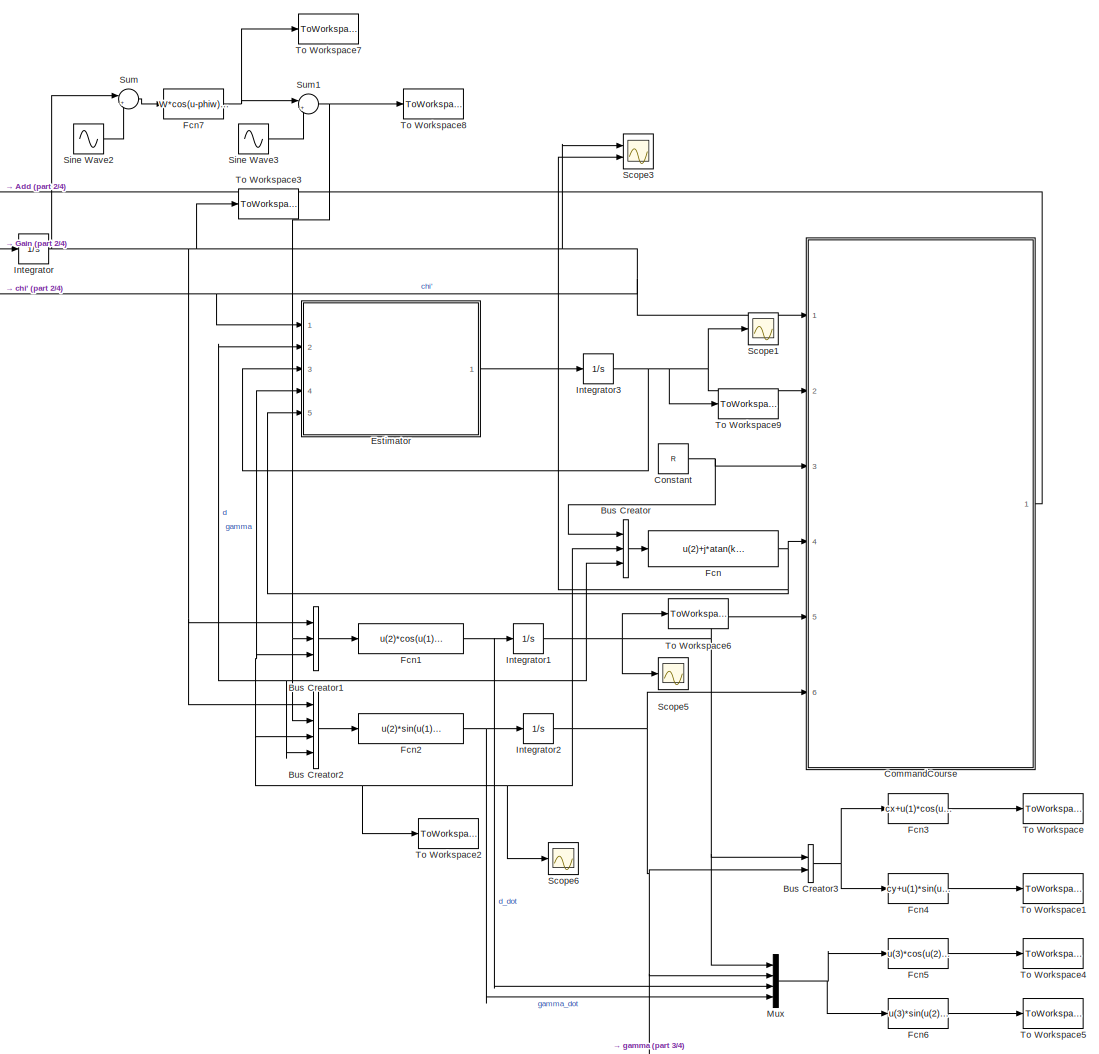
[diagram: root canvas - part 1/4, most of the canvas]
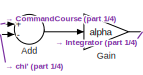
[diagram: root canvas - part 2/4, top left region]
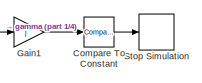
[diagram: root canvas - part 3/4, bottom right region]
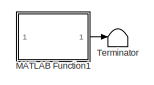
[diagram: root canvas - part 4/4, bottom left region]
MODEL slx_6d43719d4b91
KIND model
CONFIG AbsTol = auto
CONFIG FixedStep = 0.001
CONFIG MaxStep = auto
CONFIG MinStep = auto
CONFIG RelTol = 1e-4
CONFIG SampleTimeConstraint = Unconstrained
CONFIG Solver = FixedStepAuto
CONFIG SolverMode = Auto
CONFIG SolverName = FixedStepAuto
CONFIG StartTime = 0.0
CONFIG StopTime = 1000
BLOCK [Sum] Add
  InputSameDT = off
  Inputs = +-
  OutDataTypeStr = Inherit: Inherit via internal rule
  Ports = [2, 1]
  SaturateOnIntegerOverflow = off
BLOCK [BusCreator] Bus Creator
  DisplayOption = bar
  InheritFromInputs = on
  Inputs = 3
  Ports = [3, 1]
BLOCK [BusCreator] Bus Creator1
  DisplayOption = bar
  InheritFromInputs = on
  Inputs = 3
  Ports = [3, 1]
BLOCK [BusCreator] Bus Creator2
  DisplayOption = bar
  InheritFromInputs = on
  Inputs = 4
  Ports = [4, 1]
BLOCK [BusCreator] Bus Creator3
  DisplayOption = bar
  InheritFromInputs = on
  Inputs = 2
  Ports = [2, 1]
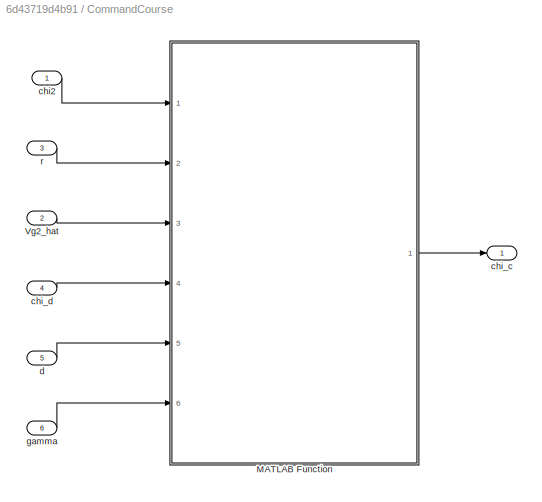
BLOCK [SubSystem] CommandCourse
  Ports = [6, 1]
  RequestExecContextInheritance = off
  Variant = off
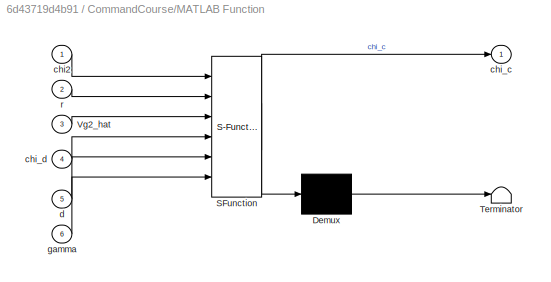
BLOCK [SubSystem] CommandCourse/MATLAB Function
  ErrorFcn = Stateflow.Translate.translate
  PermitHierarchicalResolution = ExplicitOnly
  Ports = [6, 1]
  RequestExecContextInheritance = off
  SFBlockType = MATLAB Function
  TreatAsAtomicUnit = on
  Variant = off
BLOCK [Demux] CommandCourse/MATLAB Function/ Demux 
  Outputs = 1
  Ports = [1, 1]
BLOCK [S-Function] CommandCourse/MATLAB Function/ SFunction 
  EnableBusSupport = on
  FunctionName = sf_sfun
  Parameters = alpha,epsi,k,kk
  PortCounts = [6 2]
  Ports = [6, 2]
  SFunctionDeploymentMode = off
  Tag = Stateflow S-Function RevisedOrbitFollowing2 2
BLOCK [Terminator] CommandCourse/MATLAB Function/ Terminator 
BLOCK [Inport] CommandCourse/MATLAB Function/Vg2_hat
  IconDisplay = Port number
  Port = 3
BLOCK [Inport] CommandCourse/MATLAB Function/chi2
  IconDisplay = Port number
BLOCK [Outport] CommandCourse/MATLAB Function/chi_c
  IconDisplay = Port number
BLOCK [Inport] CommandCourse/MATLAB Function/chi_d
  IconDisplay = Port number
  Port = 4
BLOCK [Inport] CommandCourse/MATLAB Function/d
  IconDisplay = Port number
  Port = 5
BLOCK [Inport] CommandCourse/MATLAB Function/gamma
  IconDisplay = Port number
  Port = 6
BLOCK [Inport] CommandCourse/MATLAB Function/r
  IconDisplay = Port number
  Port = 2
BLOCK [Inport] CommandCourse/Vg2_hat
  IconDisplay = Port number
  Port = 2
BLOCK [Inport] CommandCourse/chi2
  IconDisplay = Port number
BLOCK [Outport] CommandCourse/chi_c
  IconDisplay = Port number
BLOCK [Inport] CommandCourse/chi_d
  IconDisplay = Port number
  Port = 4
BLOCK [Inport] CommandCourse/d
  IconDisplay = Port number
  Port = 5
BLOCK [Inport] CommandCourse/gamma
  IconDisplay = Port number
  Port = 6
BLOCK [Inport] CommandCourse/r 
  IconDisplay = Port number
  Port = 3
BLOCK [Reference] Compare To Constant  REF=simulink/Logic and Bit
Operations/Compare
To Constant
  Ports = [1, 1]
  SourceBlock = simulink/Logic and Bit\nOperations/Compare\nTo Constant
  SourceType = Compare To Constant
BLOCK [Constant] Constant
  Value = R
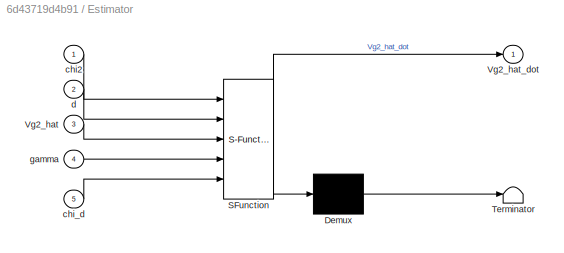
BLOCK [SubSystem] Estimator 
  ErrorFcn = Stateflow.Translate.translate
  PermitHierarchicalResolution = ExplicitOnly
  Ports = [5, 1]
  RequestExecContextInheritance = off
  SFBlockType = MATLAB Function
  TreatAsAtomicUnit = on
  Variant = off
BLOCK [Demux] Estimator / Demux 
  Outputs = 1
  Ports = [1, 1]
BLOCK [S-Function] Estimator / SFunction 
  EnableBusSupport = on
  FunctionName = sf_sfun
  Parameters = R,Va,W,d_int,epsi,k,kk,phiw
  PortCounts = [5 2]
  Ports = [5, 2]
  SFunctionDeploymentMode = off
  Tag = Stateflow S-Function RevisedOrbitFollowing2 1
BLOCK [Terminator] Estimator / Terminator 
BLOCK [Inport] Estimator /Vg2_hat
  IconDisplay = Port number
  Port = 3
BLOCK [Outport] Estimator /Vg2_hat_dot
  IconDisplay = Port number
BLOCK [Inport] Estimator /chi2
  IconDisplay = Port number
BLOCK [Inport] Estimator /chi_d
  IconDisplay = Port number
  Port = 5
BLOCK [Inport] Estimator /d
  IconDisplay = Port number
  Port = 2
BLOCK [Inport] Estimator /gamma
  IconDisplay = Port number
  Port = 4
BLOCK [Fcn] Fcn
  Expr = u(2)+j*atan(k*(u(3)-u(1)))+j*pi/2
BLOCK [Fcn] Fcn1
  Expr = u(2)*cos(u(1)-u(3))
BLOCK [Fcn] Fcn2
  Expr = u(2)*sin(u(1)-u(3))/u(4)
BLOCK [Fcn] Fcn3
  Expr = cx+u(1)*cos(u(2))
BLOCK [Fcn] Fcn4
  Expr = cy+u(1)*sin(u(2))
BLOCK [Fcn] Fcn5
  Expr = u(3)*cos(u(2))-u(1)*sin(u(2))*u(4)
BLOCK [Fcn] Fcn6
  Expr = u(3)*sin(u(2))+u(1)*cos(u(2))*u(4)
BLOCK [Fcn] Fcn7
  Expr = W*cos(u-phiw)+(Va^2-W^2*(sin(u-phiw))^2)^0.5
BLOCK [Gain] Gain
  Gain = alpha
  OutDataTypeStr = Inherit: Inherit via internal rule
  ParamDataTypeStr = Inherit: Inherit via internal rule
  SaturateOnIntegerOverflow = off
BLOCK [Gain] Gain1
  Gain = j
  OutDataTypeStr = Inherit: Inherit via internal rule
  ParamDataTypeStr = Inherit: Inherit via internal rule
  SaturateOnIntegerOverflow = off
BLOCK [Integrator] Integrator
  InitialCondition = course_int
  Ports = [1, 1]
BLOCK [Integrator] Integrator1
  InitialCondition = d_int
  Ports = [1, 1]
BLOCK [Integrator] Integrator2
  InitialCondition = gamma_int
  Ports = [1, 1]
  WrappedStateLowerValue = -2*pi
  WrappedStateUpperValue = 0
BLOCK [Integrator] Integrator3
  Ports = [1, 1]
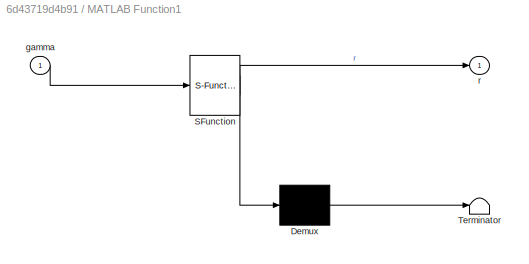
BLOCK [SubSystem] MATLAB Function1
  ErrorFcn = Stateflow.Translate.translate
  PermitHierarchicalResolution = ExplicitOnly
  Ports = [1, 1]
  RequestExecContextInheritance = off
  SFBlockType = MATLAB Function
  TreatAsAtomicUnit = on
  Variant = off
BLOCK [Demux] MATLAB Function1/ Demux 
  Outputs = 1
  Ports = [1, 1]
BLOCK [S-Function] MATLAB Function1/ SFunction 
  EnableBusSupport = on
  FunctionName = sf_sfun
  PortCounts = [1 2]
  Ports = [1, 2]
  SFunctionDeploymentMode = off
  Tag = Stateflow S-Function RevisedOrbitFollowing2 3
BLOCK [Terminator] MATLAB Function1/ Terminator 
BLOCK [Inport] MATLAB Function1/gamma
  IconDisplay = Port number
BLOCK [Outport] MATLAB Function1/r
  IconDisplay = Port number
BLOCK [Mux] Mux
  DisplayOption = bar
  Ports = [4, 1]
BLOCK [Scope] Scope1
  Ports = [1]
  ScopeSpecificationString = Simulink.scopes.TimeScopeBlockCfg('CurrentConfiguration', extmgr.ConfigurationSet(extmgr.Configuration('Core','General UI',true),extmgr.Configuration('Core','Source UI',true),extmgr.Configuration('Sources','WiredSimulink',true,'DataLoggingVariableName','ScopeData2','DataLoggingSaveFormat','Array','DataLoggingDecimation','1'),extmgr.Configuration('Visuals','Time Domain',true,'SerializedDisplays',{s...<+1511ch>
BLOCK [Scope] Scope3
  NumInputPorts = 2
  Ports = [2]
  ScopeSpecificationString = Simulink.scopes.TimeScopeBlockCfg('CurrentConfiguration', extmgr.ConfigurationSet(extmgr.Configuration('Core','General UI',true),extmgr.Configuration('Core','Source UI',true),extmgr.Configuration('Sources','WiredSimulink',true,'DataLoggingVariableName','ScopeData3'),extmgr.Configuration('Visuals','Time Domain',true,'SerializedDisplays',{struct('MinYLimReal','-107.69879','MaxYLimReal','11.09387','Y...<+1507ch>
BLOCK [Scope] Scope5
  Ports = [1]
  ScopeSpecificationString = Simulink.scopes.TimeScopeBlockCfg('CurrentConfiguration', extmgr.ConfigurationSet(extmgr.Configuration('Core','General UI',true,'FigureColor',[0 0 0]),extmgr.Configuration('Core','Source UI',true),extmgr.Configuration('Sources','WiredSimulink',true,'DataLoggingVariableName','ScopeData3'),extmgr.Configuration('Visuals','Time Domain',true,'SerializedDisplays',{struct('MinYLimReal','8.90627','MaxYLim...<+1549ch>
BLOCK [Scope] Scope6
  Ports = [1]
  ScopeSpecificationString = Simulink.scopes.TimeScopeBlockCfg('CurrentConfiguration', extmgr.ConfigurationSet(extmgr.Configuration('Core','General UI',true),extmgr.Configuration('Core','Source UI',true),extmgr.Configuration('Sources','WiredSimulink',true,'DataLoggingVariableName','ScopeData5'),extmgr.Configuration('Visuals','Time Domain',true,'SerializedDisplays',{struct('MinYLimReal','-3.64886','MaxYLimReal','1.27809','YLab...<+1389ch>
BLOCK [Sin] Sine Wave2
  Amplitude = 0.2
  Frequency = 0.5
  Ports = [0, 1]
  SampleTime = 0
BLOCK [Sin] Sine Wave3
  Frequency = 0.5
  Ports = [0, 1]
  SampleTime = 0
BLOCK [Stop] Stop Simulation
BLOCK [Sum] Sum
  IconShape = round
  InputSameDT = off
  Inputs = |++
  OutDataTypeStr = Inherit: Inherit via internal rule
  Ports = [2, 1]
  SaturateOnIntegerOverflow = off
BLOCK [Sum] Sum1
  IconShape = round
  InputSameDT = off
  Inputs = |++
  OutDataTypeStr = Inherit: Inherit via internal rule
  Ports = [2, 1]
  SaturateOnIntegerOverflow = off
BLOCK [Terminator] Terminator
BLOCK [ToWorkspace] To Workspace
  FixptAsFi = on
  MaxDataPoints = inf
  Ports = [1]
  SampleTime = -1
  Save2DSignal = 3-D array (concatenate along third dimension)
  SaveFormat = Timeseries
  VariableName = x
BLOCK [ToWorkspace] To Workspace1
  FixptAsFi = on
  MaxDataPoints = inf
  Ports = [1]
  SampleTime = -1
  Save2DSignal = 3-D array (concatenate along third dimension)
  SaveFormat = Timeseries
  VariableName = y
BLOCK [ToWorkspace] To Workspace2
  FixptAsFi = on
  MaxDataPoints = inf
  Ports = [1]
  SampleTime = -1
  Save2DSignal = 3-D array (concatenate along third dimension)
  SaveFormat = Timeseries
  VariableName = gamma
BLOCK [ToWorkspace] To Workspace3
  FixptAsFi = on
  MaxDataPoints = inf
  Ports = [1]
  SampleTime = -1
  Save2DSignal = 3-D array (concatenate along third dimension)
  SaveFormat = Timeseries
  VariableName = course
BLOCK [ToWorkspace] To Workspace4
  FixptAsFi = on
  MaxDataPoints = inf
  Ports = [1]
  SampleTime = -1
  Save2DSignal = 3-D array (concatenate along third dimension)
  SaveFormat = Timeseries
  VariableName = vx
BLOCK [ToWorkspace] To Workspace5
  FixptAsFi = on
  MaxDataPoints = inf
  Ports = [1]
  SampleTime = -1
  Save2DSignal = 3-D array (concatenate along third dimension)
  SaveFormat = Timeseries
  VariableName = vy
BLOCK [ToWorkspace] To Workspace6
  FixptAsFi = on
  MaxDataPoints = inf
  Ports = [1]
  SampleTime = -1
  Save2DSignal = 3-D array (concatenate along third dimension)
  SaveFormat = Timeseries
  VariableName = d
BLOCK [ToWorkspace] To Workspace7
  FixptAsFi = on
  MaxDataPoints = inf
  Ports = [1]
  SampleTime = -1
  Save2DSignal = 3-D array (concatenate along third dimension)
  SaveFormat = Timeseries
  VariableName = Vg
BLOCK [ToWorkspace] To Workspace8
  FixptAsFi = on
  MaxDataPoints = inf
  Ports = [1]
  SampleTime = -1
  Save2DSignal = 3-D array (concatenate along third dimension)
  SaveFormat = Timeseries
  VariableName = Vg2
BLOCK [ToWorkspace] To Workspace9
  FixptAsFi = on
  MaxDataPoints = inf
  Ports = [1]
  SampleTime = -1
  Save2DSignal = 3-D array (concatenate along third dimension)
  SaveFormat = Timeseries
  VariableName = Vg2hat
LINE Add:1 -> Gain:1
LINE Bus Creator1:1 -> Fcn1:1
LINE Bus Creator2:1 -> Fcn2:1
NET Bus Creator3:1 -> Fcn3:1, Fcn4:1
LINE Bus Creator:1 -> Fcn:1
LINE CommandCourse/MATLAB Function:1 -> CommandCourse/chi_c:1
LINE CommandCourse/Vg2_hat:1 -> CommandCourse/MATLAB Function:3
LINE CommandCourse/chi2:1 -> CommandCourse/MATLAB Function:1
LINE CommandCourse/chi_d:1 -> CommandCourse/MATLAB Function:4
LINE CommandCourse/d:1 -> CommandCourse/MATLAB Function:5
LINE CommandCourse/gamma:1 -> CommandCourse/MATLAB Function:6
LINE CommandCourse/r :1 -> CommandCourse/MATLAB Function:2
LINE CommandCourse:1 -> Add:1
LINE Compare To Constant:1 -> Stop Simulation:1
NET Constant:1 -> Bus Creator:1, CommandCourse:3
LINE Estimator :1 -> Integrator3:1
NET Fcn1:1 -> Integrator1:1, Mux:3
NET Fcn2:1 -> Integrator2:1, Mux:4
LINE Fcn3:1 -> To Workspace:1
LINE Fcn4:1 -> To Workspace1:1
LINE Fcn5:1 -> To Workspace4:1
LINE Fcn6:1 -> To Workspace5:1
NET Fcn7:1 -> Sum1:1, To Workspace7:1
NET Fcn:1 -> CommandCourse:4, Estimator :5, Scope3:2
LINE Gain1:1 -> Compare To Constant:1
LINE Gain:1 -> Integrator:1
NET Integrator1:1 -> Bus Creator2:4, Bus Creator3:1, Bus Creator:3, CommandCourse:5, Estimator :2, Mux:1, Scope5:1, To Workspace6:1
NET Integrator2:1 -> Bus Creator1:3, Bus Creator2:3, Bus Creator3:2, Bus Creator:2, CommandCourse:6, Estimator :4, Gain1:1, Mux:2, Scope6:1, To Workspace2:1
NET Integrator3:1 -> CommandCourse:2, Estimator :3, Scope1:1, To Workspace9:1
NET Integrator:1 -> Add:2, Bus Creator1:1, Bus Creator2:1, CommandCourse:1, Estimator :1, Scope3:1, Sum:1, To Workspace3:1
LINE MATLAB Function1:1 -> Terminator:1
NET Mux:1 -> Fcn5:1, Fcn6:1
LINE Sine Wave2:1 -> Sum:2
LINE Sine Wave3:1 -> Sum1:2
NET Sum1:1 -> Bus Creator1:2, Bus Creator2:2, To Workspace8:1
LINE Sum:1 -> Fcn7:1
note: NET lines group one-source signal fan-out (src -> all destinations, sorted); 1:1 wires keep LINE
CHART Estimator
 states=1 transitions=1
  STATE_LABEL 'eML_blk_kernel()'
  STATE_LABEL "SCRIPT:\nfunction Vg2_hat_dot = estimator(chi2,d,Vg2_hat,gamma,chi_d,W,phiw,Va,k,kk,epsi,d_int,R)\n%estimator of Vg'\nterm = (chi2-chi_d)/epsi;\nrho = d_int^2/pi^2;\nGamma = 150;\nif abs(term)<=1\n    sat = term;\nelse\n    sat = sign(term);\nend\n% partial derivative of Vg' over chi'\nbeta = k/(1+(k*(d-R))^2);\nder = W*sin(phiw-chi2)+(Va^2-W^2*(sin(phiw-chi2))^2)^(-0.5)*W^2*sin(phiw-chi2)*cos(phiw-chi2); \n\nVg...<+149ch>"
CHART CommandCourse/MATLAB Function states=1 transitions=1
  STATE_LABEL 'eML_blk_kernel()'
  STATE_LABEL 'SCRIPT:\nfunction chi_c = CommandCourse(chi2,r,Vg2_hat,chi_d,d,gamma,epsi,alpha,k,kk)\n%generate course angle for orbit following\nterm = (chi2-chi_d)/epsi;\nif abs(term)<=1\n    sat = term;\nelse\n    sat = sign(term);\nend\nbeta = k/(1+(k*(d-r))^2);\nchi_c = chi2+Vg2_hat/alpha/d*sin(chi2-gamma)-beta/alpha*Vg2_hat*cos(chi2-gamma)-kk/alpha*sat;\nend\n\n'
CHART MATLAB Function1 states=1 transitions=1
  STATE_LABEL 'eML_blk_kernel()'
  STATE_LABEL 'SCRIPT:\nfunction r = radius(gamma)\n%#codegen\nif abs(gamma)<=4*pi\n    r=70;\nelse\n    r=50;\nend\nend\n'
